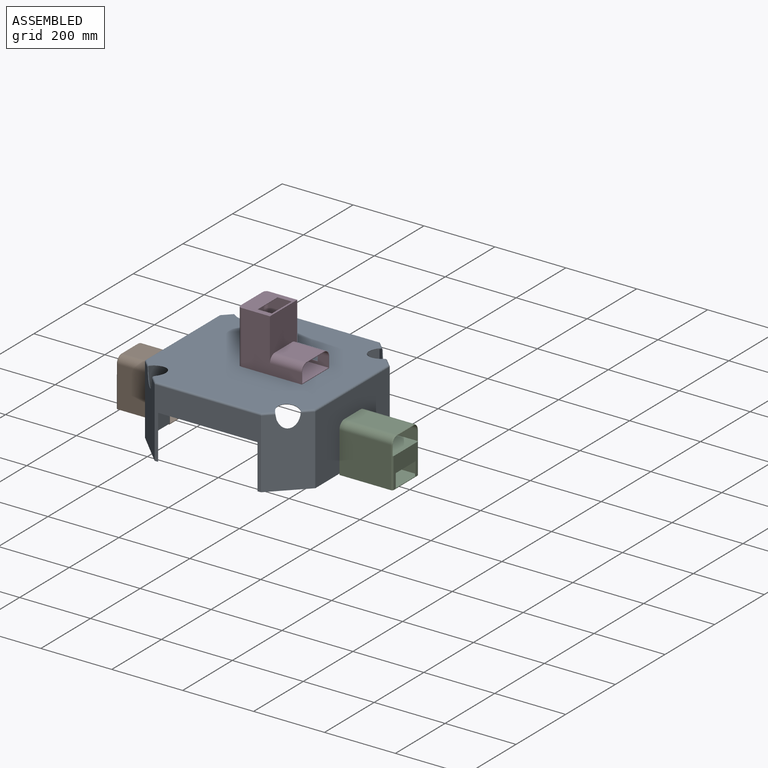
[diagram: assembled view]
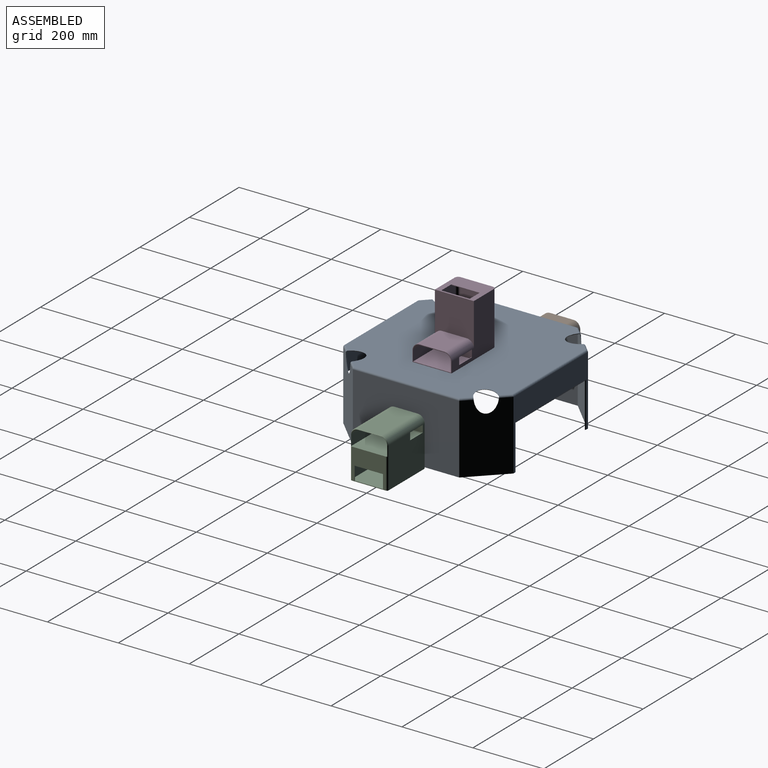
[diagram: assembled view, second angle]
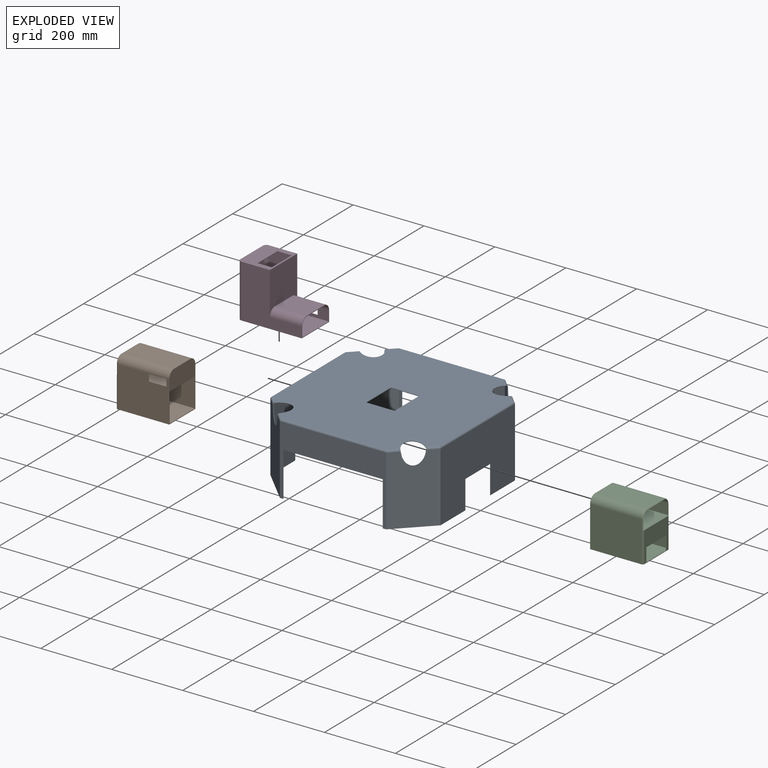
[diagram: exploded view]
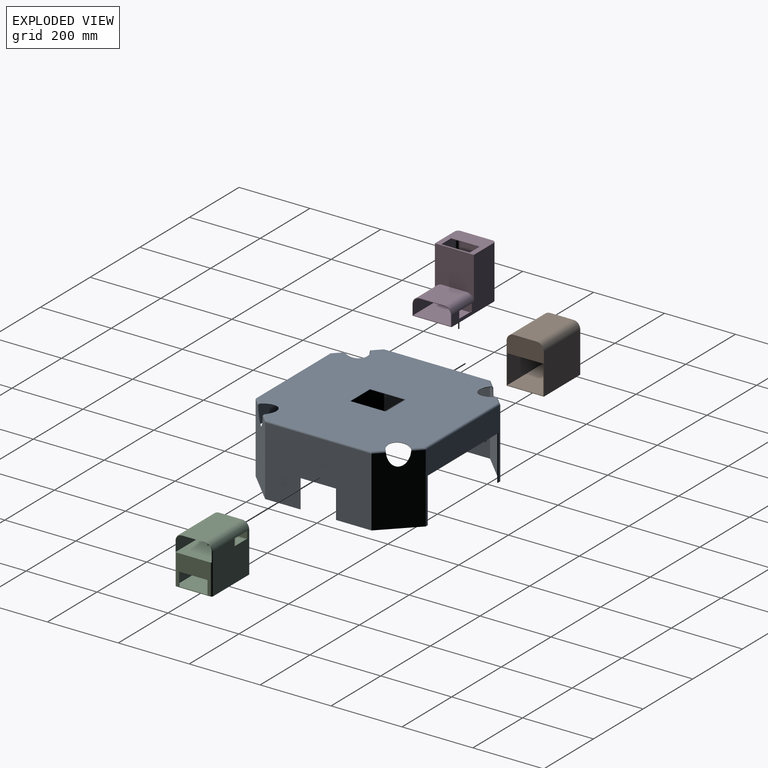
[diagram: exploded view, second angle]
ASSEMBLY  parts=4 mates=3
PART A: 54 faces, bbox 480x480x219.8 mm
  f0: plane 190x100mm, normal (0,0,-1), area 373.9mm2, adj f1,f4,f7,f12,f17,f20,f30,f51
  f1: plane 300x195mm, normal (1,0,0), area 50500mm2, adj f0,f7,f9,f14,f30,f31,f32,f40
  f2: plane 300x195mm, normal (-1,0,0), area 50500mm2, adj f3,f8,f10,f13,f33,f34,f35,f46
  f3: plane 190x100mm, normal (0,0,-1), area 373.9mm2, adj f2,f5,f8,f12,f17,f19,f33,f53
  f4: plane 298.67x198.4mm, normal (-1,0,0), area 50277mm2, adj f0,f9,f15,f20,f21,f30,f31,f32
  f5: plane 298.67x198.4mm, normal (1,0,0), area 50277mm2, adj f3,f10,f15,f18,f19,f33,f34,f35
  f6: plane 470x470mm, normal (0,0,1), area 190937.3mm2, adj f22,f23,f24,f25,f26,f27,f28,f29
  f7: plane 195x90mm, normal (0.71,0.71,0), area 23119.5mm2, adj f0,f1,f12,f25,f38,f39
  f8: plane 195x90mm, normal (-0.71,0.71,0), area 23119.5mm2, adj f2,f3,f12,f22,f36,f47
  f9: plane 190x100mm, normal (0,0,-1), area 373.9mm2, adj f1,f4,f11,f14,f16,f21,f32,f48
  f10: plane 190x100mm, normal (0,0,-1), area 373.9mm2, adj f2,f5,f11,f13,f16,f18,f35,f49
  f11: plane 300x195mm, normal (0,-1,0), area 23500mm2, adj f9,f10,f13,f14,f43,f48,f49,f50
  f12: plane 300x195mm, normal (0,1,0), area 21530.1mm2, adj f0,f3,f7,f8,f37,f51,f52,f53
  f13: plane 195x90mm, normal (-0.71,-0.71,0), area 23119.5mm2, adj f2,f10,f11,f23,f44,f45
  f14: plane 195x90mm, normal (0.71,-0.71,0), area 23119.5mm2, adj f1,f9,f11,f24,f41,f42
  f15: plane 476.81x476.81mm, normal (0,0,-1), area 195476.7mm2, adj f4,f5,f16,f17,f18,f19,f20,f21
  f16: plane 298.67x198.4mm, normal (0,1,0), area 22287.1mm2, adj f9,f10,f15,f18,f21,f48,f49,f50
  f17: plane 298.67x198.4mm, normal (0,-1,0), area 24257mm2, adj f0,f3,f15,f19,f20,f51,f52,f53
  f18: plane 198.4x89.06mm, normal (0.71,0.71,0), area 22989.9mm2, adj f5,f10,f15,f16,f23
  f19: plane 198.4x89.06mm, normal (0.71,-0.71,0), area 22989.9mm2, adj f3,f5,f15,f17,f22
  f20: plane 198.4x89.06mm, normal (-0.71,-0.71,0), area 22989.9mm2, adj f0,f4,f15,f17,f25
  f21: plane 198.41x89.07mm, normal (-0.71,0.71,0), area 22989.9mm2, adj f4,f9,f15,f16,f24
  f22: cylinder r=30mm len=67.11mm, axis (-0.5,0.5,0.71), area 415.8mm2, adj f6,f8,f15,f19,f36,f47
  f23: cylinder r=30mm len=67.11mm, axis (-0.5,-0.5,0.71), area 415.8mm2, adj f6,f13,f15,f18,f44,f45
  f24: cylinder r=30mm len=67.11mm, axis (0.5,-0.5,0.71), area 415.8mm2, adj f6,f14,f15,f21,f41,f42
  f25: cylinder r=30mm len=67.11mm, axis (0.5,0.5,0.71), area 415.8mm2, adj f6,f7,f15,f20,f38,f39
  f26: plane 100x1.6mm, normal (-1,0,0), area 160mm2, adj f6,f15,f27,f29
  f27: plane 80x1.6mm, normal (0,-1,0), area 128mm2, adj f6,f15,f26,f28
  f28: plane 100x1.6mm, normal (1,0,0), area 160mm2, adj f6,f15,f27,f29
  f29: plane 80x1.6mm, normal (0,1,0), area 128mm2, adj f6,f15,f26,f28
  f30: cylinder r=5mm len=83.67mm, axis (0,0,-1), area 336.3mm2, adj f0,f1,f4,f31
  f31: cylinder r=5mm len=107.33mm, axis (0,1,0), area 425.7mm2, adj f1,f4,f30,f32
  f32: cylinder r=5mm len=83.67mm, axis (0,0,1), area 336.3mm2, adj f1,f4,f9,f31
  f33: cylinder r=5mm len=83.67mm, axis (0,0,-1), area 336.3mm2, adj f2,f3,f5,f34
  f34: cylinder r=5mm len=107.33mm, axis (0,1,0), area 425.7mm2, adj f2,f5,f33,f35
  f35: cylinder r=5mm len=83.67mm, axis (0,0,1), area 336.3mm2, adj f2,f5,f10,f34
  f36: cylinder r=5mm len=27.47mm, axis (0.71,0.71,0), area 258.9mm2, adj f6,f8,f22,f37
  f37: cylinder r=5mm len=300mm, axis (-1,0,0), area 2344.4mm2, adj f6,f12,f36,f38
  f38: cylinder r=5mm len=27.47mm, axis (-0.71,0.71,0), area 258.9mm2, adj f6,f7,f25,f37
  f39: cylinder r=5mm len=27.47mm, axis (-0.71,0.71,0), area 258.9mm2, adj f6,f7,f25,f40
  f40: cylinder r=5mm len=300mm, axis (0,1,0), area 2344.4mm2, adj f1,f6,f39,f41
  f41: cylinder r=5mm len=27.47mm, axis (-0.71,-0.71,0), area 258.9mm2, adj f6,f14,f24,f40
  f42: cylinder r=5mm len=27.47mm, axis (-0.71,-0.71,0), area 258.9mm2, adj f6,f14,f24,f43
  f43: cylinder r=5mm len=300mm, axis (1,0,0), area 2344.4mm2, adj f6,f11,f42,f44
  f44: cylinder r=5mm len=27.47mm, axis (0.71,-0.71,0), area 258.9mm2, adj f6,f13,f23,f43
  f45: cylinder r=5mm len=27.47mm, axis (0.71,-0.71,0), area 258.9mm2, adj f6,f13,f23,f46
  f46: cylinder r=5mm len=300mm, axis (0,-1,0), area 2344.4mm2, adj f2,f6,f45,f47
  f47: cylinder r=5mm len=27.47mm, axis (0.71,0.71,0), area 258.9mm2, adj f6,f8,f22,f46
  f48: cylinder r=5mm len=128.67mm, axis (0,0,1), area 521.5mm2, adj f9,f11,f16,f50
  f49: cylinder r=5mm len=128.67mm, axis (0,0,-1), area 521.5mm2, adj f10,f11,f16,f50
  f50: cylinder r=5mm len=287.33mm, axis (-1,0,0), area 1166.4mm2, adj f11,f16,f48,f49
  f51: cylinder r=5mm len=128.67mm, axis (0,0,1), area 521.5mm2, adj f0,f12,f17,f52
  f52: cylinder r=5mm len=287.33mm, axis (-1,0,0), area 1166.4mm2, adj f12,f17,f51,f53
  f53: cylinder r=5mm len=128.67mm, axis (0,0,-1), area 521.5mm2, adj f3,f12,f17,f52
PART B: 34 faces, bbox 150x108.3x136.6 mm
  f0: cylinder r=5mm len=101.8mm, axis (0,-1,0), area 799.5mm2, adj f1,f2,f3,f4
  f1: plane 101.8x41.8mm, normal (1,0,0), area 4109.9mm2, adj f0,f2,f3,f8,f9,f10
  f2: plane 147.07x28.4mm, normal (0,-1,0), area 3161.3mm2, adj f0,f1,f4,f8,f12,f13,f14,f15
  f3: plane 147.07x28.4mm, normal (0,1,0), area 4171.3mm2, adj f0,f1,f4,f10,f17
  f4: plane 143.4x101.8mm, normal (0,0,1), area 14595.3mm2, adj f0,f2,f3,f11,f16,f17
  f5: plane 38.34x1.6mm, normal (0,1,0), area 61.3mm2, adj f6,f11,f27,f28
  f6: plane 80x1.6mm, normal (0,0,-1), area 128mm2, adj f5,f7,f11,f28
  f7: plane 38.34x1.6mm, normal (0,-1,0), area 61.3mm2, adj f6,f11,f27,f28
  f8: cylinder r=18.4mm len=147.07mm, axis (-1,0,0), area 4250.6mm2, adj f1,f2,f9,f18
  f9: plane 147.07x65mm, normal (0,0,-1), area 9559.3mm2, adj f1,f8,f10,f19
  f10: cylinder r=18.4mm len=147.07mm, axis (-1,0,0), area 4250.6mm2, adj f1,f3,f9,f20
  f11: plane 95x86.6mm, normal (1,0,0), area 5159.8mm2, adj f4,f5,f6,f7,f16,f17,f26,f27
  f12: plane 50.5x1.6mm, normal (0,0,1), area 80.8mm2, adj f2,f13,f15,f25
  f13: plane 20x1.6mm, normal (1,0,0), area 32mm2, adj f2,f12,f14,f25
  f14: plane 50.5x1.6mm, normal (0,0,-1), area 80.8mm2, adj f2,f13,f15,f25
  f15: plane 20x1.6mm, normal (-1,0,0), area 32mm2, adj f2,f12,f14,f25
  f16: cylinder r=5mm len=115mm, axis (0,0,-1), area 797mm2, adj f2,f4,f11,f18,f25,f26
  f17: cylinder r=5mm len=115mm, axis (0,0,1), area 797mm2, adj f3,f4,f11,f20,f24,f26
  f18: torus R=15mm, axis (1,0,0), area 125.8mm2, adj f8,f16,f19,f23
  f19: cylinder r=5mm len=65mm, axis (0,1,0), area 267.5mm2, adj f9,f18,f20,f22
  f20: torus R=15mm, axis (1,0,0), area 125.8mm2, adj f10,f17,f19,f21
  f21: cylinder r=20mm len=145mm, axis (-1,0,0), area 4555.2mm2, adj f20,f22,f24,f33
  f22: plane 145x65mm, normal (0,0,1), area 9424.9mm2, adj f19,f21,f23,f33
  f23: cylinder r=20mm len=145mm, axis (-1,0,0), area 4555.2mm2, adj f18,f22,f25,f33
  f24: plane 145x115mm, normal (0,-1,0), area 16674.8mm2, adj f17,f21,f26,f33
  f25: plane 145x115mm, normal (0,1,0), area 15664.8mm2, adj f12,f13,f14,f15,f16,f23,f26,f33
  f26: plane 150x105mm, normal (0,0,-1), area 15739mm2, adj f11,f16,f17,f24,f25,f33
  f27: plane 80x1.6mm, normal (0,0,1), area 128mm2, adj f5,f7,f11,f28
  f28: plane 101.8x81.8mm, normal (-1,0,0), area 5260mm2, adj f5,f6,f7,f27,f29,f30,f31,f32
  f29: plane 148.4x81.8mm, normal (0,1,0), area 12138.9mm2, adj f28,f30,f32,f33
  f30: plane 148.4x101.8mm, normal (0,0,-1), area 15106.9mm2, adj f28,f29,f31,f33
  f31: plane 148.4x81.8mm, normal (0,-1,0), area 12138.9mm2, adj f28,f30,f32,f33
  f32: plane 148.4x101.8mm, normal (0,0,1), area 15106.9mm2, adj f28,f29,f31,f33
  f33: plane 135x105mm, normal (-1,0,0), area 5676.1mm2, adj f21,f22,f23,f24,f25,f26,f29,f30
PART C: same geometry as B
PART D: 34 faces, bbox 180x110x150 mm
  f0: plane 110x90mm, normal (0,0,1), area 6657.1mm2, adj f3,f4,f5,f6,f7,f8,f15,f16
  f1: plane 106.8x86.8mm, normal (0,0,-1), area 6040mm2, adj f9,f10,f11,f12,f13,f14,f15,f16
  f2: plane 180x110mm, normal (0,0,-1), area 10517.1mm2, adj f3,f4,f5,f6,f7,f9,f10,f11
  f3: plane 170x150mm, normal (0,1,0), area 13690mm2, adj f0,f2,f4,f8,f19,f20,f30,f31
  f4: cylinder r=10mm len=150mm, axis (0,0,-1), area 2356.2mm2, adj f0,f2,f3,f5
  f5: plane 150x90mm, normal (-1,0,0), area 13500mm2, adj f0,f2,f4,f6
  f6: cylinder r=10mm len=150mm, axis (0,0,-1), area 2356.2mm2, adj f0,f2,f5,f7
  f7: plane 170x150mm, normal (0,-1,0), area 14700mm2, adj f0,f2,f6,f8,f19,f22
  f8: plane 120x110mm, normal (1,0,0), area 11171.7mm2, adj f0,f3,f7,f20,f21,f22
  f9: plane 148.4x78.4mm, normal (0,-1,0), area 11634.6mm2, adj f1,f2,f10,f14
  f10: cylinder r=8.4mm len=148.4mm, axis (0,0,-1), area 1958.1mm2, adj f1,f2,f9,f11
  f11: plane 148.4x90mm, normal (1,0,0), area 13356mm2, adj f1,f2,f10,f12
  f12: cylinder r=8.4mm len=148.4mm, axis (0,0,-1), area 1958.1mm2, adj f1,f2,f11,f13
  f13: plane 148.4x78.4mm, normal (0,1,0), area 11634.6mm2, adj f1,f2,f12,f14
  f14: plane 148.4x106.8mm, normal (-1,0,0), area 15849.1mm2, adj f1,f2,f9,f13
  f15: plane 80x1.6mm, normal (1,0,0), area 128mm2, adj f0,f1,f16,f18
  f16: plane 40x1.6mm, normal (0,1,0), area 64mm2, adj f0,f1,f15,f17
  f17: plane 80x1.6mm, normal (-1,0,0), area 128mm2, adj f0,f1,f16,f18
  f18: plane 40x1.6mm, normal (0,-1,0), area 64mm2, adj f0,f1,f15,f17
  f19: plane 110x50mm, normal (1,0,0), area 475.4mm2, adj f2,f3,f7,f20,f21,f22,f23,f24
  f20: cylinder r=20mm len=90mm, axis (-1,0,0), area 2827.4mm2, adj f3,f8,f19,f21
  f21: plane 90x70mm, normal (0,0,1), area 6300mm2, adj f8,f19,f20,f22
  f22: cylinder r=20mm len=90mm, axis (-1,0,0), area 2827.4mm2, adj f7,f8,f19,f21
  f23: plane 88.4x28.4mm, normal (0,-1,0), area 1500.6mm2, adj f19,f24,f28,f29,f30,f31,f32,f33
  f24: cylinder r=18.4mm len=88.4mm, axis (-1,0,0), area 2555mm2, adj f19,f23,f25,f29
  f25: plane 88.4x70mm, normal (0,0,-1), area 6188mm2, adj f19,f24,f26,f29
  f26: cylinder r=18.4mm len=88.4mm, axis (-1,0,0), area 2555mm2, adj f19,f25,f27,f29
  f27: plane 88.4x28.4mm, normal (0,1,0), area 2510.6mm2, adj f19,f26,f28,f29
  f28: plane 106.8x88.4mm, normal (0,0,1), area 9441.1mm2, adj f19,f23,f27,f29
  f29: plane 106.8x46.8mm, normal (1,0,0), area 4852.9mm2, adj f23,f24,f25,f26,f27,f28
  f30: plane 50.5x1.6mm, normal (0,0,-1), area 80.8mm2, adj f3,f23,f31,f33
  f31: plane 20x1.6mm, normal (-1,0,0), area 32mm2, adj f3,f23,f30,f32
  f32: plane 50.5x1.6mm, normal (0,0,1), area 80.8mm2, adj f3,f23,f31,f33
  f33: plane 20x1.6mm, normal (1,0,0), area 32mm2, adj f3,f23,f30,f32
PLACE A t=(-0.57,-1,17.54)mm fixed
PLACE B rot(axis=(0,0,1),180deg) t=(-40.56,-1,14.14)mm
PLACE C t=(39.43,-1,14.14)mm
PLACE D t=(0.03,-1,17.54)mm
MATE fastened B.f33 <-> A.f2  axis (1,0,0) through (-240.57,-1,-2.46)mm
MATE fastened C.f33 <-> A.f1  axis (-1,0,0) through (239.43,-1,-2.46)mm
MATE parallel D.f2 <-> A.f6  axis (0,0,-1) through (43.43,-1,117.54)mm
